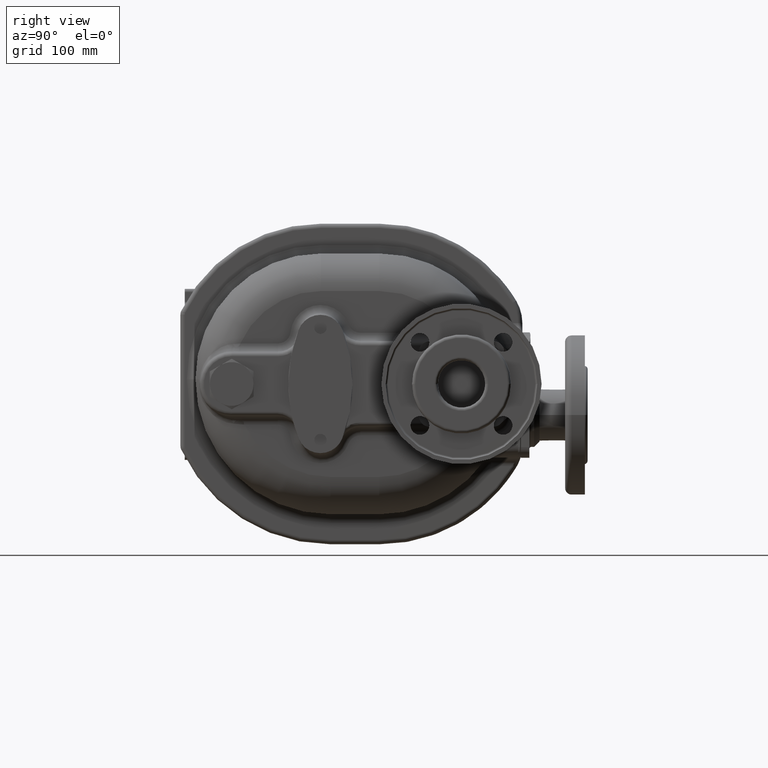
[diagram: clean part render]
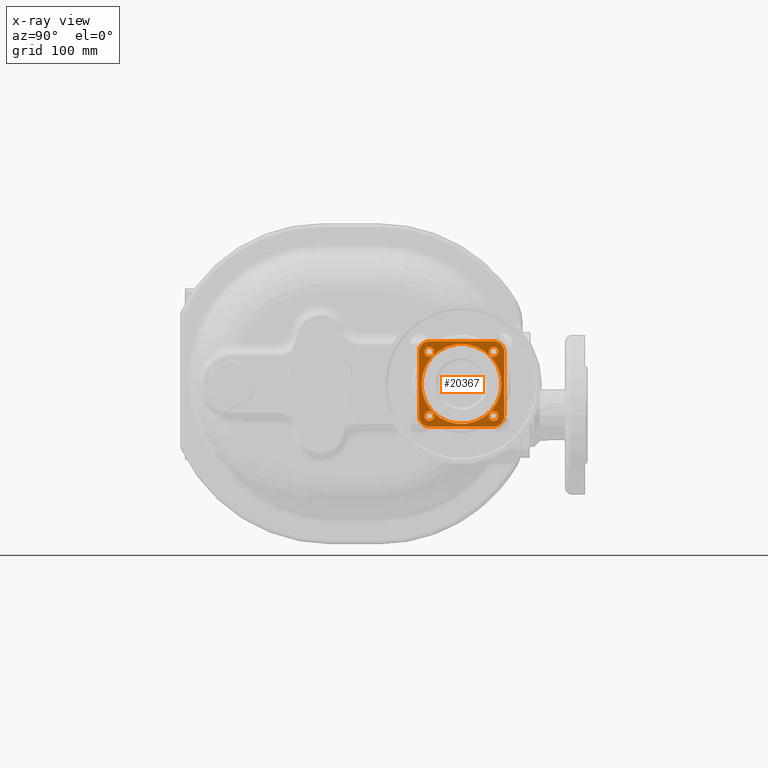
[diagram: x-ray — body ghosted, one internal face saturated and labeled with its STEP entity id]
A machine part, right view, then the same camera in x-ray: the body is ghosted and one INTERNAL B-rep face — a face not visible from any outside direction — is saturated and labeled: STEP entity #20367.
In plain terms, the highlighted planar face has unit normal (-1, 0, 0).
Its self-contained STEP definition (entity closure, byte-faithful):
#6494=CARTESIAN_POINT('',(8.E1,9.7E1,2.1E1));
#6495=DIRECTION('',(1.E0,0.E0,0.E0));
#6496=DIRECTION('',(0.E0,0.E0,1.E0));
#6497=AXIS2_PLACEMENT_3D('',#6494,#6495,#6496);
#6499=DIRECTION('',(0.E0,1.E0,0.E0));
#6500=VECTOR('',#6499,6.E1);
#6501=CARTESIAN_POINT('',(8.E1,9.7E1,3.1E1));
#6502=LINE('',#6501,#6500);
#6503=CARTESIAN_POINT('',(8.E1,1.57E2,2.1E1));
#6504=DIRECTION('',(1.E0,0.E0,0.E0));
#6505=DIRECTION('',(0.E0,1.E0,0.E0));
#6506=AXIS2_PLACEMENT_3D('',#6503,#6504,#6505);
#6508=DIRECTION('',(0.E0,0.E0,-1.E0));
#6509=VECTOR('',#6508,6.E1);
#6510=CARTESIAN_POINT('',(8.E1,1.67E2,2.1E1));
#6511=LINE('',#6510,#6509);
#6512=CARTESIAN_POINT('',(8.E1,1.57E2,-3.9E1));
#6513=DIRECTION('',(1.E0,0.E0,0.E0));
#6514=DIRECTION('',(0.E0,0.E0,-1.E0));
#6515=AXIS2_PLACEMENT_3D('',#6512,#6513,#6514);
#6517=DIRECTION('',(0.E0,-1.E0,0.E0));
#6518=VECTOR('',#6517,6.E1);
#6519=CARTESIAN_POINT('',(8.E1,1.57E2,-4.9E1));
#6520=LINE('',#6519,#6518);
#6521=CARTESIAN_POINT('',(8.E1,9.7E1,-3.9E1));
#6522=DIRECTION('',(1.E0,0.E0,0.E0));
#6523=DIRECTION('',(0.E0,-1.E0,0.E0));
#6524=AXIS2_PLACEMENT_3D('',#6521,#6522,#6523);
#6526=DIRECTION('',(0.E0,0.E0,1.E0));
#6527=VECTOR('',#6526,6.E1);
#6528=CARTESIAN_POINT('',(8.E1,8.7E1,-3.9E1));
#6529=LINE('',#6528,#6527);
#6530=CARTESIAN_POINT('',(8.E1,9.694796179957E1,-3.905203820043E1));
#6531=DIRECTION('',(1.E0,0.E0,0.E0));
#6532=DIRECTION('',(0.E0,0.E0,1.E0));
#6533=AXIS2_PLACEMENT_3D('',#6530,#6531,#6532);
#6535=CARTESIAN_POINT('',(8.E1,9.694796179957E1,-3.905203820043E1));
#6536=DIRECTION('',(1.E0,0.E0,0.E0));
#6537=DIRECTION('',(0.E0,0.E0,-1.E0));
#6538=AXIS2_PLACEMENT_3D('',#6535,#6536,#6537);
#6540=CARTESIAN_POINT('',(8.E1,1.570520382004E2,-3.905203820043E1));
#6541=DIRECTION('',(1.E0,0.E0,0.E0));
#6542=DIRECTION('',(0.E0,-1.E0,0.E0));
#6543=AXIS2_PLACEMENT_3D('',#6540,#6541,#6542);
#6545=CARTESIAN_POINT('',(8.E1,1.570520382004E2,-3.905203820043E1));
#6546=DIRECTION('',(1.E0,0.E0,0.E0));
#6547=DIRECTION('',(0.E0,1.E0,0.E0));
#6548=AXIS2_PLACEMENT_3D('',#6545,#6546,#6547);
#6550=CARTESIAN_POINT('',(8.E1,1.570520382004E2,2.105203820043E1));
#6551=DIRECTION('',(1.E0,0.E0,0.E0));
#6552=DIRECTION('',(0.E0,0.E0,-1.E0));
#6553=AXIS2_PLACEMENT_3D('',#6550,#6551,#6552);
#6555=CARTESIAN_POINT('',(8.E1,1.570520382004E2,2.105203820043E1));
#6556=DIRECTION('',(1.E0,0.E0,0.E0));
#6557=DIRECTION('',(0.E0,0.E0,1.E0));
#6558=AXIS2_PLACEMENT_3D('',#6555,#6556,#6557);
#6560=CARTESIAN_POINT('',(8.E1,9.694796179957E1,2.105203820043E1));
#6561=DIRECTION('',(1.E0,0.E0,0.E0));
#6562=DIRECTION('',(0.E0,1.E0,0.E0));
#6563=AXIS2_PLACEMENT_3D('',#6560,#6561,#6562);
#6565=CARTESIAN_POINT('',(8.E1,9.694796179957E1,2.105203820043E1));
#6566=DIRECTION('',(1.E0,0.E0,0.E0));
#6567=DIRECTION('',(0.E0,-1.E0,0.E0));
#6568=AXIS2_PLACEMENT_3D('',#6565,#6566,#6567);
#6714=CARTESIAN_POINT('',(8.E1,1.27E2,-9.E0));
#6715=DIRECTION('',(1.E0,0.E0,0.E0));
#6716=DIRECTION('',(0.E0,1.E0,0.E0));
#6717=AXIS2_PLACEMENT_3D('',#6714,#6715,#6716);
#6724=CARTESIAN_POINT('',(8.E1,1.27E2,-9.E0));
#6725=DIRECTION('',(1.E0,0.E0,0.E0));
#6726=DIRECTION('',(0.E0,-1.E0,0.E0));
#6727=AXIS2_PLACEMENT_3D('',#6724,#6725,#6726);
#9919=CARTESIAN_POINT('',(8.E1,9.7E1,3.1E1));
#9920=CARTESIAN_POINT('',(8.E1,8.7E1,2.1E1));
#9921=VERTEX_POINT('',#9919);
#9922=VERTEX_POINT('',#9920);
#9923=CARTESIAN_POINT('',(8.E1,8.7E1,-3.9E1));
#9924=CARTESIAN_POINT('',(8.E1,9.7E1,-4.9E1));
#9925=VERTEX_POINT('',#9923);
#9926=VERTEX_POINT('',#9924);
#9927=CARTESIAN_POINT('',(8.E1,1.67E2,2.1E1));
#9928=CARTESIAN_POINT('',(8.E1,1.57E2,3.1E1));
#9929=VERTEX_POINT('',#9927);
#9930=VERTEX_POINT('',#9928);
#9931=CARTESIAN_POINT('',(8.E1,1.67E2,-3.9E1));
#9932=VERTEX_POINT('',#9931);
#9933=CARTESIAN_POINT('',(8.E1,1.57E2,-4.9E1));
#9934=VERTEX_POINT('',#9933);
#9935=CARTESIAN_POINT('',(8.E1,9.694796179957E1,-3.455203820043E1));
#9936=CARTESIAN_POINT('',(8.E1,9.694796179957E1,-4.355203820043E1));
#9937=VERTEX_POINT('',#9935);
#9938=VERTEX_POINT('',#9936);
#9939=CARTESIAN_POINT('',(8.E1,1.525520382004E2,-3.905203820043E1));
#9940=CARTESIAN_POINT('',(8.E1,1.615520382004E2,-3.905203820043E1));
#9941=VERTEX_POINT('',#9939);
#9942=VERTEX_POINT('',#9940);
#9943=CARTESIAN_POINT('',(8.E1,1.570520382004E2,1.655203820043E1));
#9944=CARTESIAN_POINT('',(8.E1,1.570520382004E2,2.555203820043E1));
#9945=VERTEX_POINT('',#9943);
#9946=VERTEX_POINT('',#9944);
#9947=CARTESIAN_POINT('',(8.E1,1.014479617996E2,2.105203820043E1));
#9948=CARTESIAN_POINT('',(8.E1,9.244796179957E1,2.105203820043E1));
#9949=VERTEX_POINT('',#9947);
#9950=VERTEX_POINT('',#9948);
#9951=CARTESIAN_POINT('',(8.E1,1.645E2,-9.E0));
#9952=CARTESIAN_POINT('',(8.E1,8.95E1,-9.E0));
#9953=VERTEX_POINT('',#9951);
#9954=VERTEX_POINT('',#9952);
#20319=CARTESIAN_POINT('',(8.E1,1.27E2,-9.E0));
#20320=DIRECTION('',(-1.E0,0.E0,0.E0));
#20321=DIRECTION('',(0.E0,0.E0,-1.E0));
#20322=AXIS2_PLACEMENT_3D('',#20319,#20320,#20321);
#20323=PLANE('',#20322);
#20324=ORIENTED_EDGE('',*,*,#18591,.F.);
#20325=ORIENTED_EDGE('',*,*,#18616,.T.);
#20327=ORIENTED_EDGE('',*,*,#20326,.F.);
#20329=ORIENTED_EDGE('',*,*,#20328,.T.);
#20331=ORIENTED_EDGE('',*,*,#20330,.F.);
#20332=ORIENTED_EDGE('',*,*,#19325,.T.);
#20333=ORIENTED_EDGE('',*,*,#20299,.F.);
#20334=ORIENTED_EDGE('',*,*,#20313,.T.);
#20335=EDGE_LOOP('',(#20324,#20325,#20327,#20329,#20331,#20332,#20333,#20334));
#20336=FACE_OUTER_BOUND('',#20335,.F.);
#20338=ORIENTED_EDGE('',*,*,#20337,.T.);
#20340=ORIENTED_EDGE('',*,*,#20339,.T.);
#20341=EDGE_LOOP('',(#20338,#20340));
#20342=FACE_BOUND('',#20341,.F.);
#20344=ORIENTED_EDGE('',*,*,#20343,.T.);
#20346=ORIENTED_EDGE('',*,*,#20345,.T.);
#20347=EDGE_LOOP('',(#20344,#20346));
#20348=FACE_BOUND('',#20347,.F.);
#20350=ORIENTED_EDGE('',*,*,#20349,.T.);
#20352=ORIENTED_EDGE('',*,*,#20351,.T.);
#20353=EDGE_LOOP('',(#20350,#20352));
#20354=FACE_BOUND('',#20353,.F.);
#20356=ORIENTED_EDGE('',*,*,#20355,.T.);
#20358=ORIENTED_EDGE('',*,*,#20357,.T.);
#20359=EDGE_LOOP('',(#20356,#20358));
#20360=FACE_BOUND('',#20359,.F.);
#20362=ORIENTED_EDGE('',*,*,#20361,.T.);
#20364=ORIENTED_EDGE('',*,*,#20363,.T.);
#20365=EDGE_LOOP('',(#20362,#20364));
#20366=FACE_BOUND('',#20365,.F.);
#20367=ADVANCED_FACE('',(#20336,#20342,#20348,#20354,#20360,#20366),#20323,.F.);
#6498=CIRCLE('',#6497,1.E1);
#6507=CIRCLE('',#6506,1.E1);
#6516=CIRCLE('',#6515,1.E1);
#6525=CIRCLE('',#6524,1.E1);
#6534=CIRCLE('',#6533,4.5E0);
#6539=CIRCLE('',#6538,4.5E0);
#6544=CIRCLE('',#6543,4.5E0);
#6549=CIRCLE('',#6548,4.5E0);
#6554=CIRCLE('',#6553,4.5E0);
#6559=CIRCLE('',#6558,4.5E0);
#6564=CIRCLE('',#6563,4.5E0);
#6569=CIRCLE('',#6568,4.5E0);
#6718=CIRCLE('',#6717,3.75E1);
#6728=CIRCLE('',#6727,3.75E1);
#18591=EDGE_CURVE('',#9921,#9922,#6498,.T.);
#18616=EDGE_CURVE('',#9921,#9930,#6502,.T.);
#19325=EDGE_CURVE('',#9934,#9926,#6520,.T.);
#20299=EDGE_CURVE('',#9925,#9926,#6525,.T.);
#20313=EDGE_CURVE('',#9925,#9922,#6529,.T.);
#20326=EDGE_CURVE('',#9929,#9930,#6507,.T.);
#20328=EDGE_CURVE('',#9929,#9932,#6511,.T.);
#20330=EDGE_CURVE('',#9934,#9932,#6516,.T.);
#20337=EDGE_CURVE('',#9937,#9938,#6534,.T.);
#20339=EDGE_CURVE('',#9938,#9937,#6539,.T.);
#20343=EDGE_CURVE('',#9941,#9942,#6544,.T.);
#20345=EDGE_CURVE('',#9942,#9941,#6549,.T.);
#20349=EDGE_CURVE('',#9945,#9946,#6554,.T.);
#20351=EDGE_CURVE('',#9946,#9945,#6559,.T.);
#20355=EDGE_CURVE('',#9949,#9950,#6564,.T.);
#20357=EDGE_CURVE('',#9950,#9949,#6569,.T.);
#20361=EDGE_CURVE('',#9953,#9954,#6718,.T.);
#20363=EDGE_CURVE('',#9954,#9953,#6728,.T.);